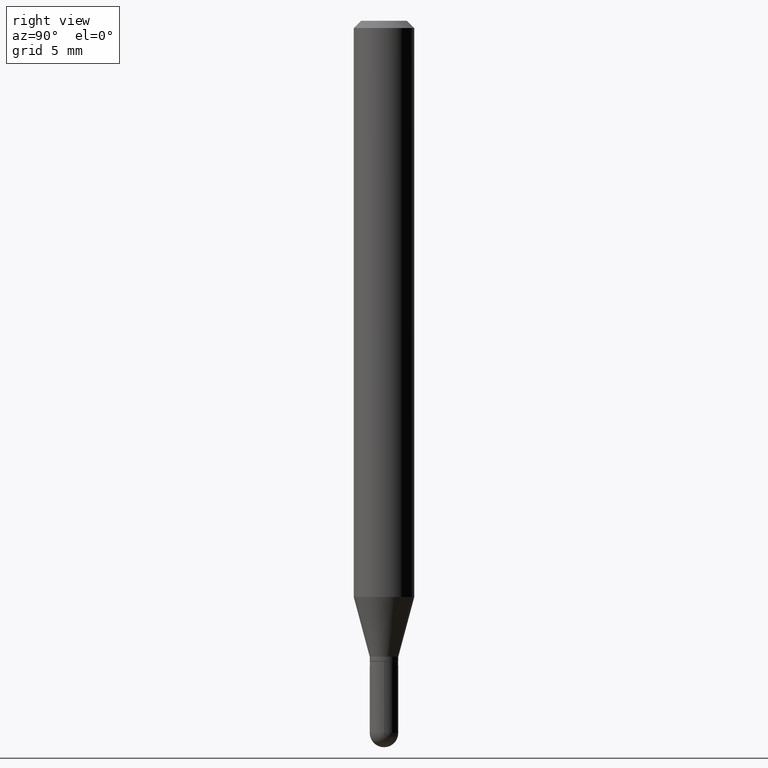
[diagram: clean part render]
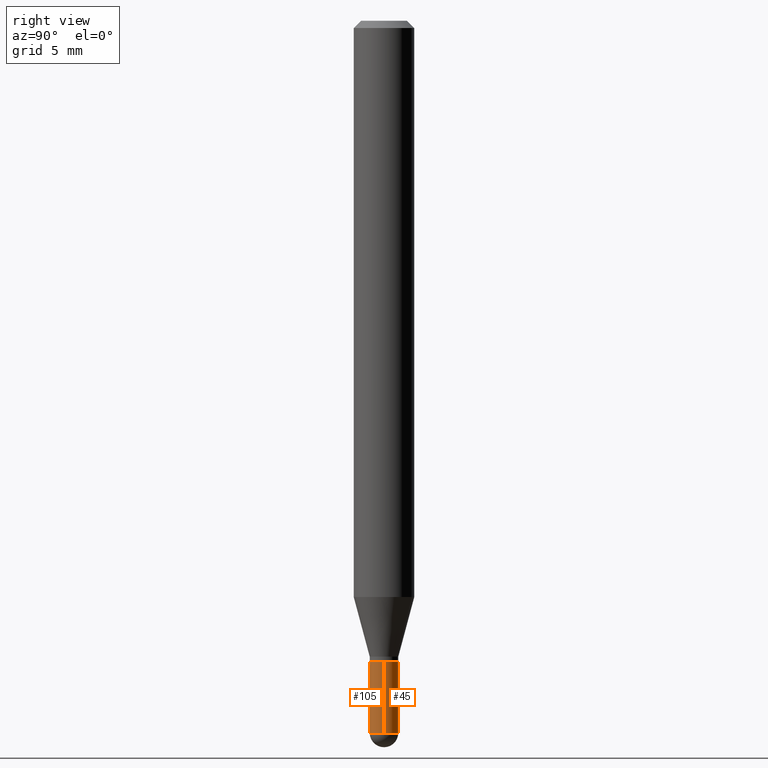
[diagram: same view with one multi-face feature highlighted, each face labeled with its STEP entity id]
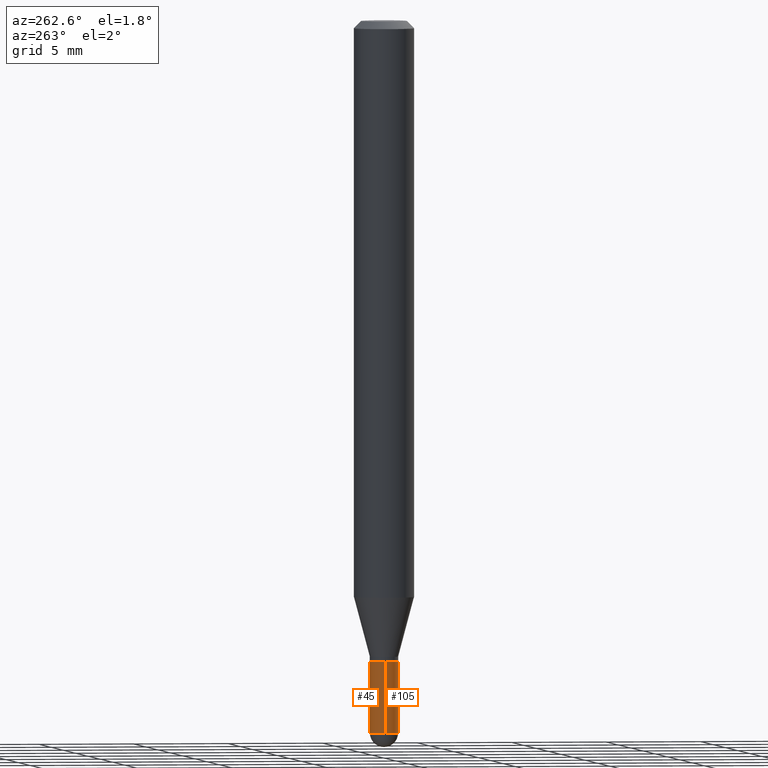
[diagram: same view with one multi-face feature highlighted, each face labeled with its STEP entity id]
A machine part, right view. The highlighted faces form ONE feature: a constant-radius fillet chain: 2 tangent blend faces with common blend radius 0.7493 mm. The faces share edges in the B-rep.
A second angle (auxiliary view) of the same feature is appended — it is thin or edge-on in the first view.
Their STEP definitions:
[1] entity #105 (Cylinder):
#2 = CARTESIAN_POINT ( 'NONE',  ( 0.02950000000000000192, -5.082723959020908406E-15, -1.470500000000000140 ) ) ;
#3 = EDGE_CURVE ( 'NONE', #32, #80, #479, .T. ) ;
#5 = CYLINDRICAL_SURFACE ( 'NONE', #243, 0.02950000000000000192 ) ;
#32 = VERTEX_POINT ( 'NONE', #504 ) ;
#35 = CARTESIAN_POINT ( 'NONE',  ( 3.596061879495243621E-29, -5.134223308768845522E-15, -1.470500000000000140 ) ) ;
#57 = EDGE_CURVE ( 'NONE', #147, #32, #428, .T. ) ;
#66 = EDGE_CURVE ( 'NONE', #419, #80, #249, .T. ) ;
#71 = CARTESIAN_POINT ( 'NONE',  ( 0.02950000000000000192, -2.059973989917448660E-16, 1.438472148859801150E-30 ) ) ;
#80 = VERTEX_POINT ( 'NONE', #195 ) ;
#83 = DIRECTION ( 'NONE',  ( -2.445468806185136877E-29, 3.491481338843145188E-15, 1.000000000000000000 ) ) ;
#87 = DIRECTION ( 'NONE',  ( 1.000000000000000000, -6.982962677686265922E-15, 4.876176775795935793E-29 ) ) ;
#94 = AXIS2_PLACEMENT_3D ( 'NONE', #162, #354, #154 ) ;
#102 = VECTOR ( 'NONE', #83, 39.37007874015748143 ) ;
#105 = ADVANCED_FACE ( 'NONE', ( #432 ), #5, .T. ) ;
#111 = ORIENTED_EDGE ( 'NONE', *, *, #57, .F. ) ;
#114 = AXIS2_PLACEMENT_3D ( 'NONE', #503, #359, #398 ) ;
#147 = VERTEX_POINT ( 'NONE', #501 ) ;
#154 = DIRECTION ( 'NONE',  ( 1.000000000000000000, -6.982962677686250933E-15, 0.000000000000000000 ) ) ;
#162 = CARTESIAN_POINT ( 'NONE',  ( 3.235355230582935570E-29, -4.619229811289481459E-15, -1.323000000000000176 ) ) ;
#167 = VECTOR ( 'NONE', #236, 39.37007874015748143 ) ;
#169 = DIRECTION ( 'NONE',  ( -2.445468806185136597E-29, 3.491481338843145583E-15, 1.000000000000000000 ) ) ;
#195 = CARTESIAN_POINT ( 'NONE',  ( 0.02949999999999999845, -4.825227210281225980E-15, -1.323000000000000176 ) ) ;
#205 = CIRCLE ( 'NONE', #114, 0.02950000000000000192 ) ;
#216 = ORIENTED_EDGE ( 'NONE', *, *, #294, .T. ) ;
#236 = DIRECTION ( 'NONE',  ( -2.445468806185136877E-29, 3.491481338843145188E-15, 1.000000000000000000 ) ) ;
#243 = AXIS2_PLACEMENT_3D ( 'NONE', #289, #169, #87 ) ;
#249 = LINE ( 'NONE', #71, #167 ) ;
#288 = DIRECTION ( 'NONE',  ( 1.000000000000000000, -6.982962677686250144E-15, 0.000000000000000000 ) ) ;
#289 = CARTESIAN_POINT ( 'NONE',  ( 0.000000000000000000, 0.000000000000000000, 0.000000000000000000 ) ) ;
#294 = EDGE_CURVE ( 'NONE', #147, #393, #205, .T. ) ;
#313 = EDGE_LOOP ( 'NONE', ( #111, #216, #500, #424, #435 ) ) ;
#354 = DIRECTION ( 'NONE',  ( -2.445468806185136597E-29, 3.491481338843145583E-15, 1.000000000000000000 ) ) ;
#359 = DIRECTION ( 'NONE',  ( -2.445468806185136597E-29, 3.491481338843145583E-15, 1.000000000000000000 ) ) ;
#368 = AXIS2_PLACEMENT_3D ( 'NONE', #35, #438, #288 ) ;
#389 = EDGE_CURVE ( 'NONE', #393, #419, #411, .T. ) ;
#393 = VERTEX_POINT ( 'NONE', #433 ) ;
#398 = DIRECTION ( 'NONE',  ( 1.000000000000000000, -6.982962677686250144E-15, 0.000000000000000000 ) ) ;
#411 = CIRCLE ( 'NONE', #368, 0.02950000000000000192 ) ;
#419 = VERTEX_POINT ( 'NONE', #2 ) ;
#424 = ORIENTED_EDGE ( 'NONE', *, *, #66, .T. ) ;
#428 = LINE ( 'NONE', #437, #102 ) ;
#432 = FACE_OUTER_BOUND ( 'NONE', #313, .T. ) ;
#433 = CARTESIAN_POINT ( 'NONE',  ( -2.096101070491936753E-16, -0.02950000000000515057, -1.470500000000000140 ) ) ;
#435 = ORIENTED_EDGE ( 'NONE', *, *, #3, .F. ) ;
#437 = CARTESIAN_POINT ( 'NONE',  ( -0.02950000000000000192, 2.096101070492295684E-16, -1.451085851625197342E-30 ) ) ;
#438 = DIRECTION ( 'NONE',  ( -2.445468806185136597E-29, 3.491481338843145583E-15, 1.000000000000000000 ) ) ;
#479 = CIRCLE ( 'NONE', #94, 0.02949999999999999845 ) ;
#500 = ORIENTED_EDGE ( 'NONE', *, *, #389, .T. ) ;
#501 = CARTESIAN_POINT ( 'NONE',  ( -0.02950000000000000192, -4.667116452979933749E-15, -1.470500000000000140 ) ) ;
#503 = CARTESIAN_POINT ( 'NONE',  ( 3.596061879495243621E-29, -5.134223308768845522E-15, -1.470500000000000140 ) ) ;
#504 = CARTESIAN_POINT ( 'NONE',  ( -0.02949999999999999845, -4.667116452979933749E-15, -1.323000000000000176 ) ) ;
[2] entity #45 (Cylinder):
#2 = CARTESIAN_POINT ( 'NONE',  ( 0.02950000000000000192, -5.082723959020908406E-15, -1.470500000000000140 ) ) ;
#30 = CIRCLE ( 'NONE', #95, 0.02950000000000000192 ) ;
#32 = VERTEX_POINT ( 'NONE', #504 ) ;
#38 = CYLINDRICAL_SURFACE ( 'NONE', #331, 0.02950000000000000192 ) ;
#44 = ORIENTED_EDGE ( 'NONE', *, *, #57, .T. ) ;
#45 = ADVANCED_FACE ( 'NONE', ( #281 ), #38, .T. ) ;
#47 = VERTEX_POINT ( 'NONE', #125 ) ;
#57 = EDGE_CURVE ( 'NONE', #147, #32, #428, .T. ) ;
#66 = EDGE_CURVE ( 'NONE', #419, #80, #249, .T. ) ;
#71 = CARTESIAN_POINT ( 'NONE',  ( 0.02950000000000000192, -2.059973989917448660E-16, 1.438472148859801150E-30 ) ) ;
#80 = VERTEX_POINT ( 'NONE', #195 ) ;
#83 = DIRECTION ( 'NONE',  ( -2.445468806185136877E-29, 3.491481338843145188E-15, 1.000000000000000000 ) ) ;
#91 = EDGE_CURVE ( 'NONE', #419, #47, #30, .T. ) ;
#95 = AXIS2_PLACEMENT_3D ( 'NONE', #357, #508, #468 ) ;
#99 = DIRECTION ( 'NONE',  ( 1.000000000000000000, -6.982962677686250933E-15, 0.000000000000000000 ) ) ;
#102 = VECTOR ( 'NONE', #83, 39.37007874015748143 ) ;
#104 = DIRECTION ( 'NONE',  ( 1.000000000000000000, -6.982962677686250144E-15, 0.000000000000000000 ) ) ;
#121 = AXIS2_PLACEMENT_3D ( 'NONE', #180, #351, #99 ) ;
#125 = CARTESIAN_POINT ( 'NONE',  ( 2.059973989917809071E-16, 0.02949999999999488101, -1.470500000000000140 ) ) ;
#129 = EDGE_CURVE ( 'NONE', #47, #147, #348, .T. ) ;
#144 = EDGE_CURVE ( 'NONE', #80, #32, #230, .T. ) ;
#147 = VERTEX_POINT ( 'NONE', #501 ) ;
#167 = VECTOR ( 'NONE', #236, 39.37007874015748143 ) ;
#180 = CARTESIAN_POINT ( 'NONE',  ( 3.235355230582935570E-29, -4.619229811289481459E-15, -1.323000000000000176 ) ) ;
#191 = ORIENTED_EDGE ( 'NONE', *, *, #66, .F. ) ;
#193 = ORIENTED_EDGE ( 'NONE', *, *, #144, .F. ) ;
#195 = CARTESIAN_POINT ( 'NONE',  ( 0.02949999999999999845, -4.825227210281225980E-15, -1.323000000000000176 ) ) ;
#200 = DIRECTION ( 'NONE',  ( -2.445468806185136597E-29, 3.491481338843145583E-15, 1.000000000000000000 ) ) ;
#230 = CIRCLE ( 'NONE', #121, 0.02949999999999999845 ) ;
#236 = DIRECTION ( 'NONE',  ( -2.445468806185136877E-29, 3.491481338843145188E-15, 1.000000000000000000 ) ) ;
#249 = LINE ( 'NONE', #71, #167 ) ;
#266 = AXIS2_PLACEMENT_3D ( 'NONE', #272, #338, #104 ) ;
#272 = CARTESIAN_POINT ( 'NONE',  ( 3.596061879495243621E-29, -5.134223308768845522E-15, -1.470500000000000140 ) ) ;
#281 = FACE_OUTER_BOUND ( 'NONE', #466, .T. ) ;
#311 = ORIENTED_EDGE ( 'NONE', *, *, #91, .T. ) ;
#324 = CARTESIAN_POINT ( 'NONE',  ( 0.000000000000000000, 0.000000000000000000, 0.000000000000000000 ) ) ;
#331 = AXIS2_PLACEMENT_3D ( 'NONE', #324, #200, #473 ) ;
#338 = DIRECTION ( 'NONE',  ( -2.445468806185136597E-29, 3.491481338843145583E-15, 1.000000000000000000 ) ) ;
#348 = CIRCLE ( 'NONE', #266, 0.02950000000000000192 ) ;
#351 = DIRECTION ( 'NONE',  ( -2.445468806185136597E-29, 3.491481338843145583E-15, 1.000000000000000000 ) ) ;
#357 = CARTESIAN_POINT ( 'NONE',  ( 3.596061879495243621E-29, -5.134223308768845522E-15, -1.470500000000000140 ) ) ;
#381 = ORIENTED_EDGE ( 'NONE', *, *, #129, .T. ) ;
#419 = VERTEX_POINT ( 'NONE', #2 ) ;
#428 = LINE ( 'NONE', #437, #102 ) ;
#437 = CARTESIAN_POINT ( 'NONE',  ( -0.02950000000000000192, 2.096101070492295684E-16, -1.451085851625197342E-30 ) ) ;
#466 = EDGE_LOOP ( 'NONE', ( #381, #44, #193, #191, #311 ) ) ;
#468 = DIRECTION ( 'NONE',  ( 1.000000000000000000, -6.982962677686250144E-15, 0.000000000000000000 ) ) ;
#473 = DIRECTION ( 'NONE',  ( 1.000000000000000000, -6.982962677686265922E-15, 4.876176775795935793E-29 ) ) ;
#501 = CARTESIAN_POINT ( 'NONE',  ( -0.02950000000000000192, -4.667116452979933749E-15, -1.470500000000000140 ) ) ;
#504 = CARTESIAN_POINT ( 'NONE',  ( -0.02949999999999999845, -4.667116452979933749E-15, -1.323000000000000176 ) ) ;
#508 = DIRECTION ( 'NONE',  ( -2.445468806185136597E-29, 3.491481338843145583E-15, 1.000000000000000000 ) ) ;